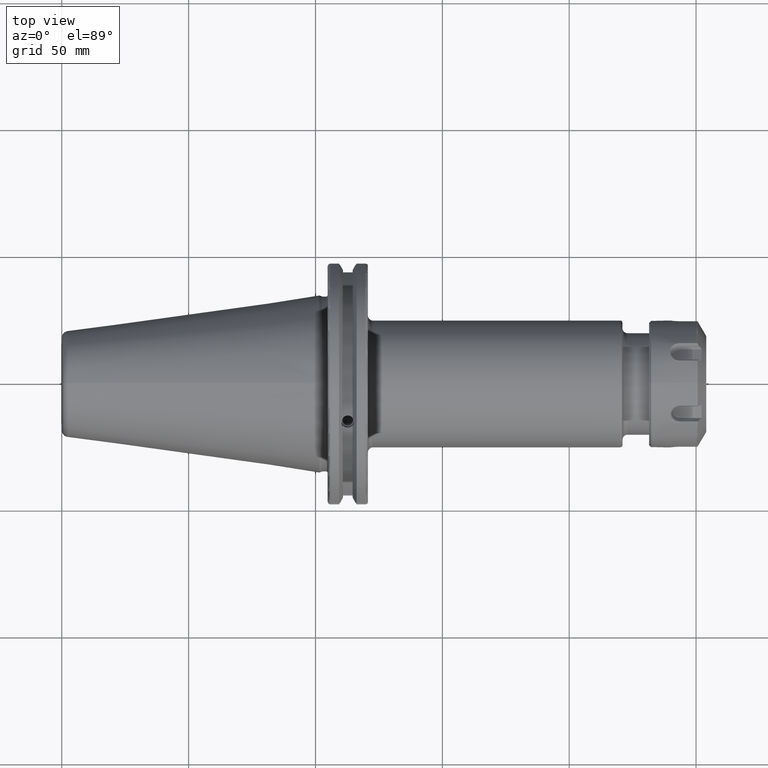
[diagram: clean part render]
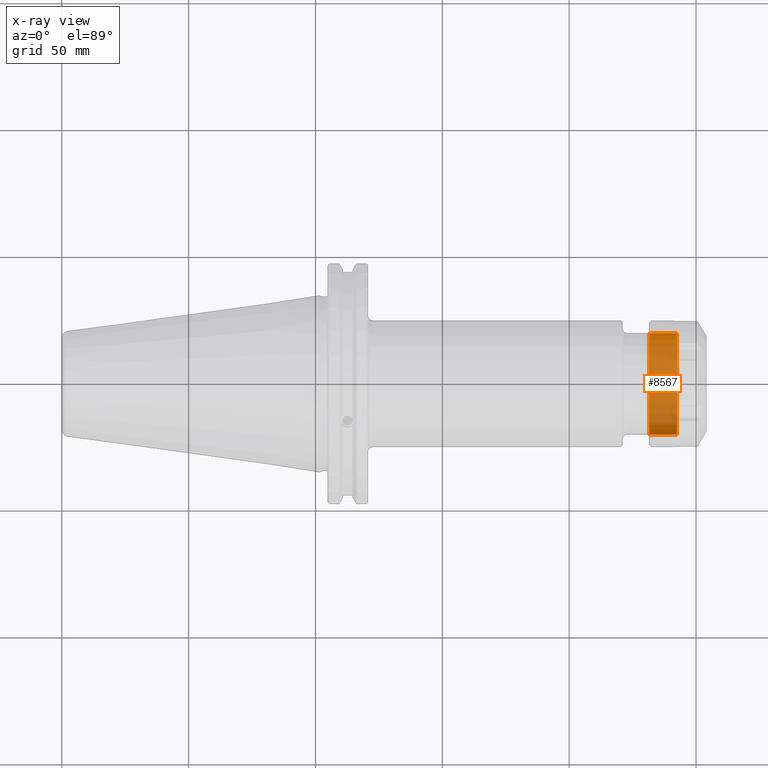
[diagram: x-ray — body ghosted, one internal face saturated and labeled with its STEP entity id]
A machine part, top view, then the same camera in x-ray: the body is ghosted and one INTERNAL B-rep face — a face not visible from any outside direction — is saturated and labeled: STEP entity #8567.
In plain terms, the highlighted cylindrical surface (partial cylindrical patch) has radius 20 mm, axis along (-1, 0, 0).
Its self-contained STEP definition (entity closure, byte-faithful):
#8502=CARTESIAN_POINT('',(-1.125E1,0.E0,0.E0));
#8503=DIRECTION('',(-1.E0,0.E0,0.E0));
#8504=DIRECTION('',(0.E0,1.E0,0.E0));
#8505=AXIS2_PLACEMENT_3D('',#8502,#8503,#8504);
#8507=DIRECTION('',(1.E0,0.E0,0.E0));
#8508=VECTOR('',#8507,1.1E1);
#8509=CARTESIAN_POINT('',(-1.125E1,2.E1,0.E0));
#8510=LINE('',#8509,#8508);
#8516=DIRECTION('',(1.E0,0.E0,0.E0));
#8517=VECTOR('',#8516,1.1E1);
#8518=CARTESIAN_POINT('',(-1.125E1,-2.E1,0.E0));
#8519=LINE('',#8518,#8517);
#8525=CARTESIAN_POINT('',(-2.5E-1,0.E0,0.E0));
#8526=DIRECTION('',(-1.E0,0.E0,0.E0));
#8527=DIRECTION('',(0.E0,1.E0,0.E0));
#8528=AXIS2_PLACEMENT_3D('',#8525,#8526,#8527);
#8540=CARTESIAN_POINT('',(-1.125E1,-2.E1,0.E0));
#8541=CARTESIAN_POINT('',(-1.125E1,2.E1,0.E0));
#8542=VERTEX_POINT('',#8540);
#8543=VERTEX_POINT('',#8541);
#8544=CARTESIAN_POINT('',(-2.5E-1,-2.E1,0.E0));
#8545=CARTESIAN_POINT('',(-2.5E-1,2.E1,0.E0));
#8546=VERTEX_POINT('',#8544);
#8547=VERTEX_POINT('',#8545);
#8552=CARTESIAN_POINT('',(-1.125E1,0.E0,0.E0));
#8553=DIRECTION('',(-1.E0,0.E0,0.E0));
#8554=DIRECTION('',(0.E0,-1.E0,0.E0));
#8555=AXIS2_PLACEMENT_3D('',#8552,#8553,#8554);
#8556=CYLINDRICAL_SURFACE('',#8555,2.E1);
#8558=ORIENTED_EDGE('',*,*,#8557,.T.);
#8560=ORIENTED_EDGE('',*,*,#8559,.T.);
#8562=ORIENTED_EDGE('',*,*,#8561,.F.);
#8564=ORIENTED_EDGE('',*,*,#8563,.F.);
#8565=EDGE_LOOP('',(#8558,#8560,#8562,#8564));
#8566=FACE_OUTER_BOUND('',#8565,.F.);
#8567=ADVANCED_FACE('',(#8566),#8556,.T.);
#8506=CIRCLE('',#8505,2.E1);
#8529=CIRCLE('',#8528,2.E1);
#8557=EDGE_CURVE('',#8543,#8542,#8506,.T.);
#8559=EDGE_CURVE('',#8542,#8546,#8519,.T.);
#8561=EDGE_CURVE('',#8547,#8546,#8529,.T.);
#8563=EDGE_CURVE('',#8543,#8547,#8510,.T.);